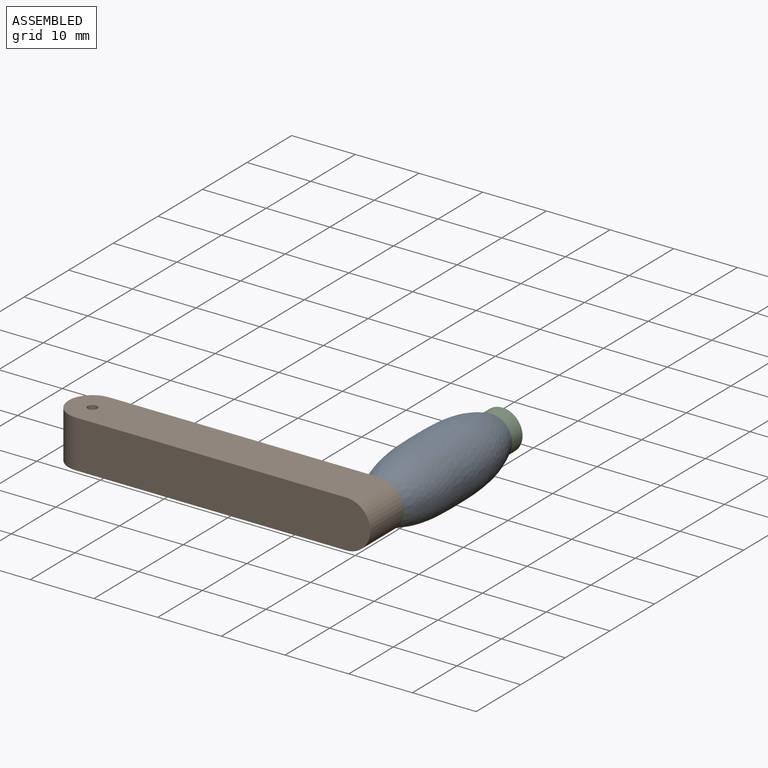
[diagram: assembled view]
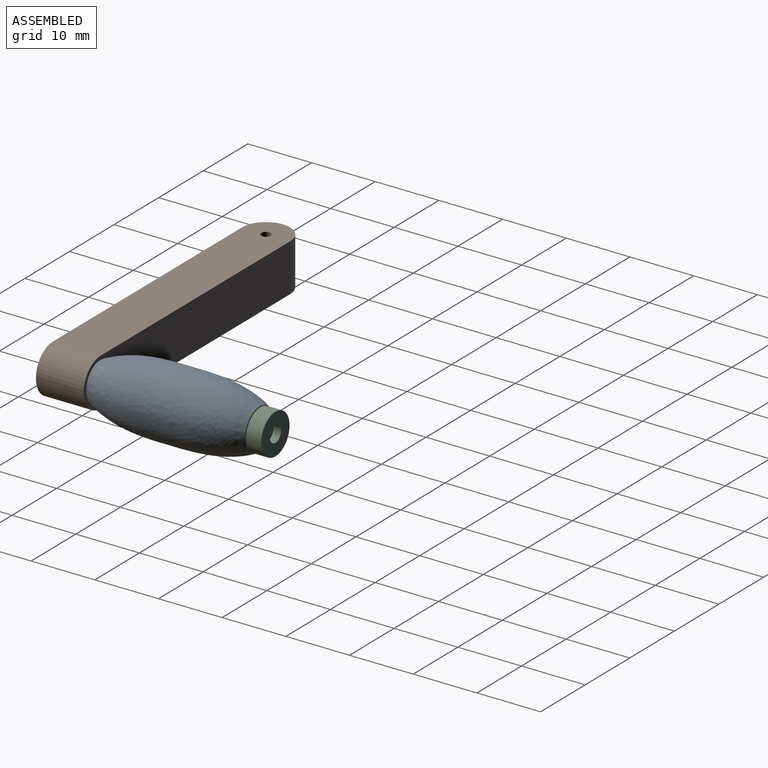
[diagram: assembled view, second angle]
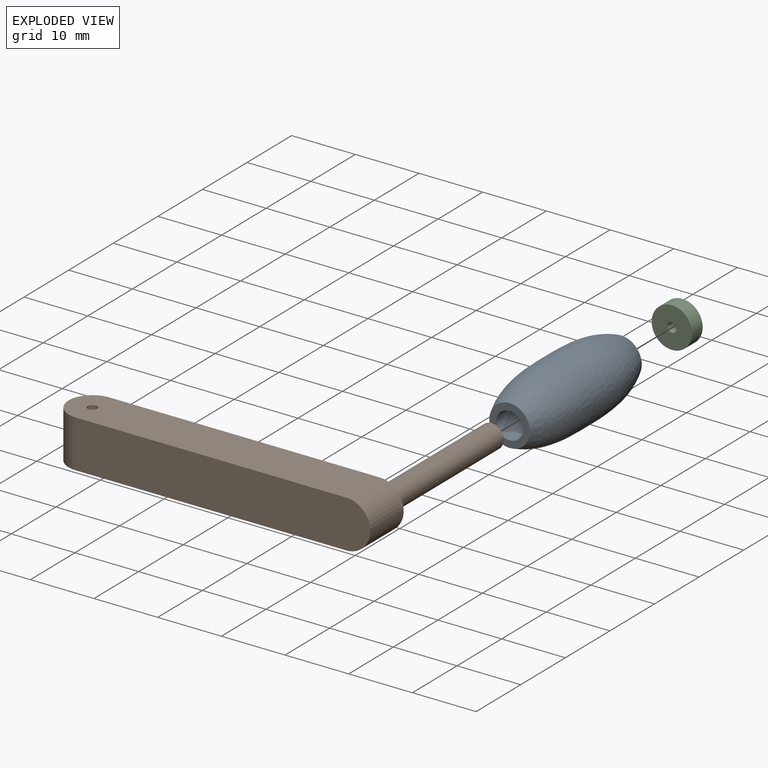
[diagram: exploded view]
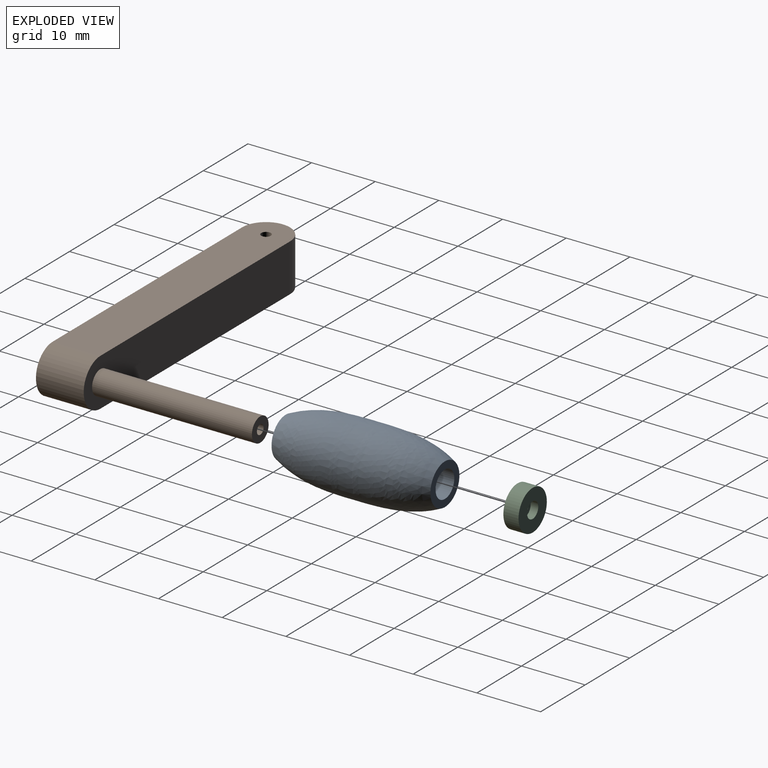
[diagram: exploded view, second angle]
ASSEMBLY  parts=3 mates=2
PART A: 4 faces, bbox 10.6x25x10.6 mm
  f0: cylinder r=2.1mm len=25mm, axis (0,1,0), area 329.9mm2, adj f1,f3
  f1: plane 6.5x6.5mm, normal (0,1,0), area 19.3mm2, adj f0,f2
  f2: revolved ~25x10.55mm, area 761.5mm2, adj f1,f3
  f3: plane 6.37x6.37mm, normal (0,-1,0), area 18mm2, adj f0,f2
PART B: 11 faces, bbox 50x32.6x7.5 mm
  f0: plane 46.25x7.5mm, normal (0,1,0), area 329.8mm2, adj f1,f4,f5,f6,f10
  f1: cylinder r=3.75mm len=7.5mm, axis (0,0,-1), area 88.4mm2, adj f0,f2,f4,f5
  f2: plane 46.25x7.5mm, normal (0,-1,0), area 340.8mm2, adj f1,f4,f5,f10
  f3: cylinder r=0.75mm len=7.5mm, axis (0,0,-1), area 35.3mm2, adj f4,f5
  f4: plane 46.25x7.5mm, normal (0,0,1), area 339.1mm2, adj f0,f1,f2,f3,f10
  f5: plane 46.25x7.5mm, normal (0,0,-1), area 339.1mm2, adj f0,f1,f2,f3,f10
  f6: cylinder r=1.88mm len=25.1mm, axis (0,-1,0), area 295.7mm2, adj f0,f7
  f7: plane 3.75x3.75mm, normal (0,1,0), area 9.3mm2, adj f6,f9
  f8: cone r=0mm half-angle=59deg, axis (0,1,0), area 2.1mm2, adj f9
  f9: cylinder r=0.75mm len=4mm, axis (0,1,0), area 18.8mm2, adj f7,f8
  f10: cylinder r=3.75mm len=7.5mm, axis (0,-1,0), area 88.4mm2, adj f0,f2,f4,f5
PART C: 6 faces, bbox 6.4x6.4x2.4 mm
  f0: cylinder r=3.17mm len=6.35mm, axis (0,0,1), area 47.5mm2, adj f1,f2
  f1: plane 6.35x6.35mm, normal (0,0,-1), area 29.9mm2, adj f0,f3
  f2: plane 6.35x6.35mm, normal (0,0,1), area 26.8mm2, adj f0,f5
  f3: cylinder r=0.75mm len=1.5mm, axis (0,0,1), area 5.6mm2, adj f1,f4
  f4: plane 2.5x2.5mm, normal (0,0,1), area 3.1mm2, adj f3,f5
  f5: cylinder r=1.25mm len=2.5mm, axis (0,0,1), area 9.3mm2, adj f2,f4
PLACE A t=(21.25,16.25,3.75)mm
PLACE B at identity
PLACE C rot(axis=(-1,0,0),90deg) t=(21.25,31.23,3.75)mm
MATE slider A.f0 <-> B.f6  axis (0,-1,0) through (21.25,3.75,3.75)mm
MATE fastened C.f3 <-> B.f6  axis (0,-1,0) through (21.25,28.85,3.75)mm
